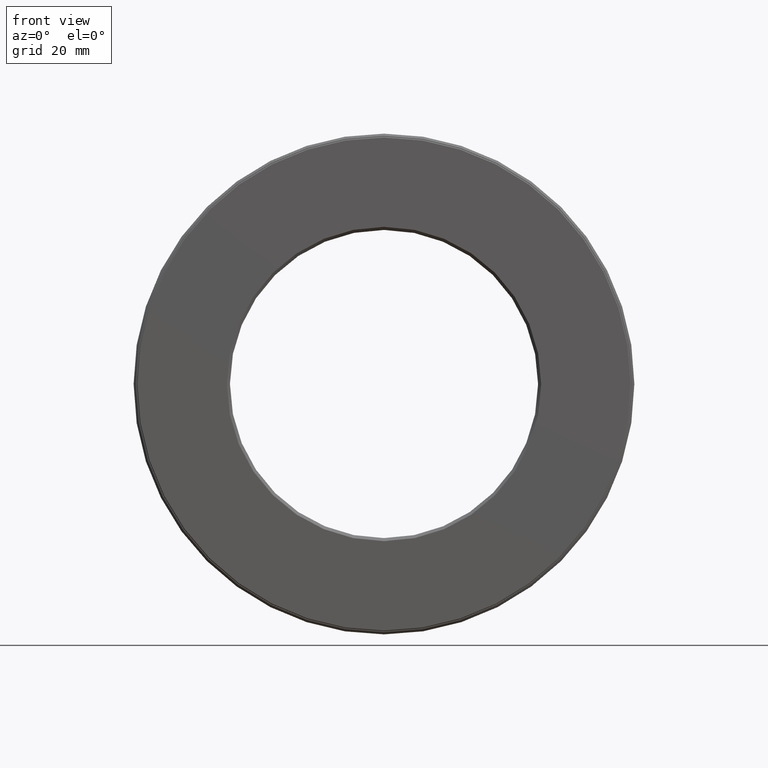
[diagram: clean part render]
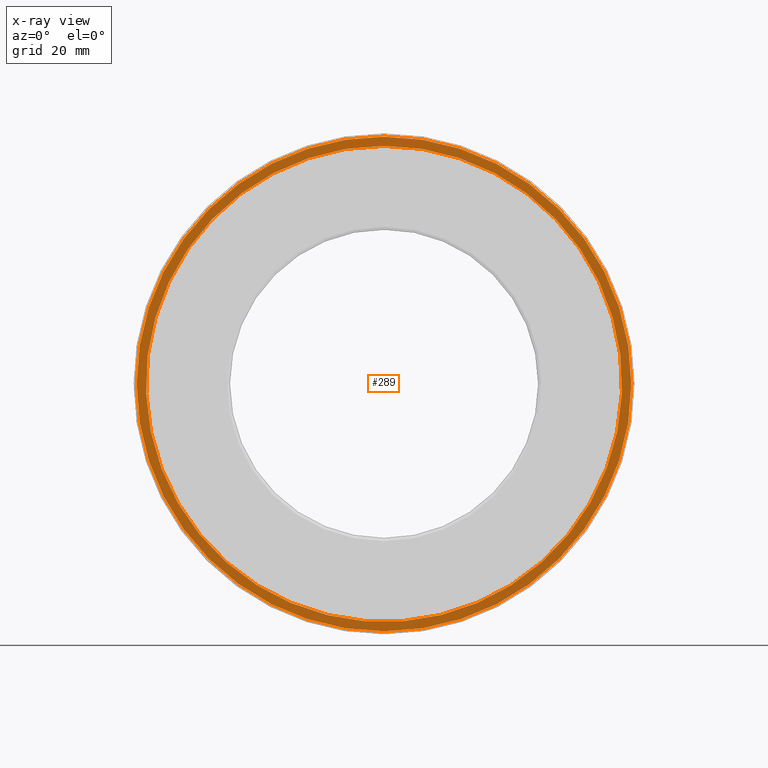
[diagram: x-ray — body ghosted, one internal face saturated and labeled with its STEP entity id]
A machine part, front view, then the same camera in x-ray: the body is ghosted and one INTERNAL B-rep face — a face not visible from any outside direction — is saturated and labeled: STEP entity #289.
In plain terms, the highlighted planar face has unit normal (-0, 1, 0).
Its self-contained STEP definition (entity closure, byte-faithful):
#12 = DIRECTION ( 'NONE',  ( 0.0000000000000000000, 0.0000000000000000000, 1.000000000000000000 ) ) ;
#59 = DIRECTION ( 'NONE',  ( -0.0000000000000000000, 1.000000000000000000, -0.0000000000000000000 ) ) ;
#80 = AXIS2_PLACEMENT_3D ( 'NONE', #527, #59, #338 ) ;
#85 = CARTESIAN_POINT ( 'NONE',  ( 0.0000000000000000000, 1.152499999999999900, 1.605000000000000000 ) ) ;
#97 = VERTEX_POINT ( 'NONE', #173 ) ;
#101 = ORIENTED_EDGE ( 'NONE', *, *, #413, .T. ) ;
#122 = DIRECTION ( 'NONE',  ( -0.0000000000000000000, 1.000000000000000000, 0.0000000000000000000 ) ) ;
#142 = CIRCLE ( 'NONE', #373, 1.605000000000000000 ) ;
#173 = CARTESIAN_POINT ( 'NONE',  ( 0.0000000000000000000, 1.152499999999999900, 1.545000000000000200 ) ) ;
#255 = ORIENTED_EDGE ( 'NONE', *, *, #570, .F. ) ;
#283 = DIRECTION ( 'NONE',  ( -0.0000000000000000000, 1.000000000000000000, -0.0000000000000000000 ) ) ;
#289 = ADVANCED_FACE ( 'NONE', ( #528, #500 ), #596, .F. ) ;
#307 = DIRECTION ( 'NONE',  ( 0.0000000000000000000, 0.0000000000000000000, 1.000000000000000000 ) ) ;
#338 = DIRECTION ( 'NONE',  ( 0.0000000000000000000, 0.0000000000000000000, 1.000000000000000000 ) ) ;
#353 = EDGE_LOOP ( 'NONE', ( #255 ) ) ;
#373 = AXIS2_PLACEMENT_3D ( 'NONE', #467, #283, #12 ) ;
#393 = CIRCLE ( 'NONE', #80, 1.545000000000000200 ) ;
#401 = EDGE_LOOP ( 'NONE', ( #101 ) ) ;
#413 = EDGE_CURVE ( 'NONE', #97, #97, #393, .T. ) ;
#467 = CARTESIAN_POINT ( 'NONE',  ( 0.0000000000000000000, 1.152499999999999900, 0.0000000000000000000 ) ) ;
#500 = FACE_BOUND ( 'NONE', #401, .T. ) ;
#501 = AXIS2_PLACEMENT_3D ( 'NONE', #543, #122, #307 ) ;
#527 = CARTESIAN_POINT ( 'NONE',  ( 0.0000000000000000000, 1.152499999999999900, 0.0000000000000000000 ) ) ;
#528 = FACE_OUTER_BOUND ( 'NONE', #353, .T. ) ;
#532 = VERTEX_POINT ( 'NONE', #85 ) ;
#543 = CARTESIAN_POINT ( 'NONE',  ( 0.0000000000000000000, 1.152499999999999900, 0.0000000000000000000 ) ) ;
#570 = EDGE_CURVE ( 'NONE', #532, #532, #142, .T. ) ;
#596 = PLANE ( 'NONE',  #501 ) ;